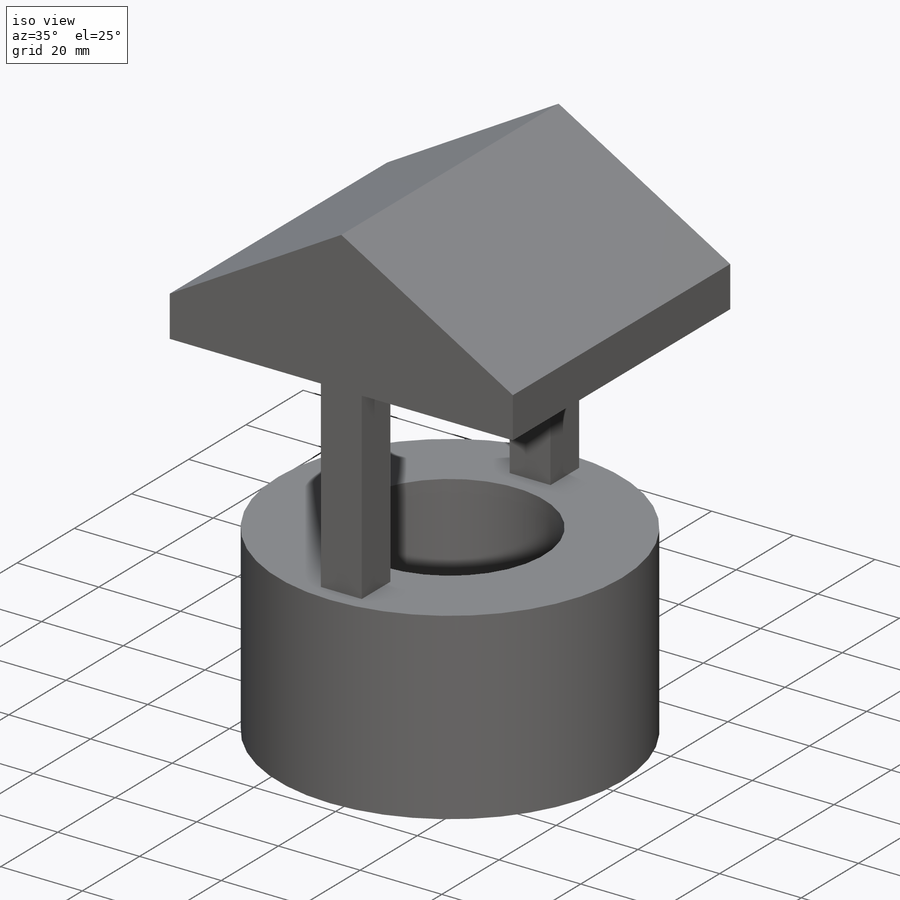
[diagram: iso view]
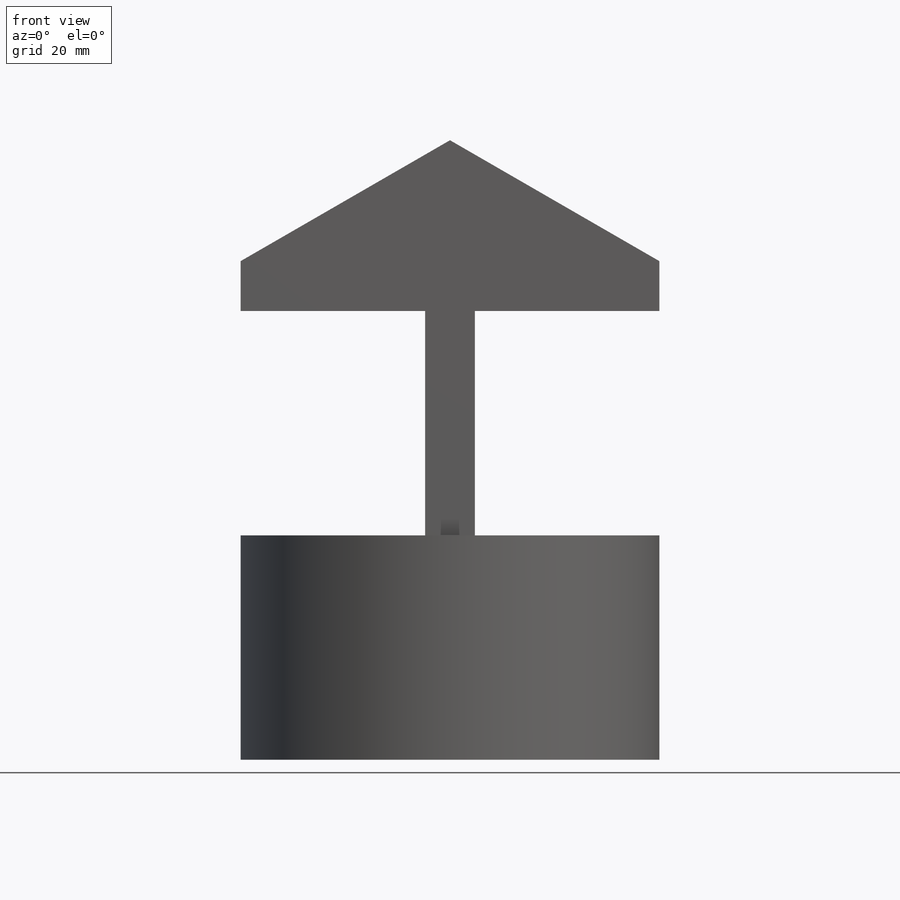
[diagram: front view]
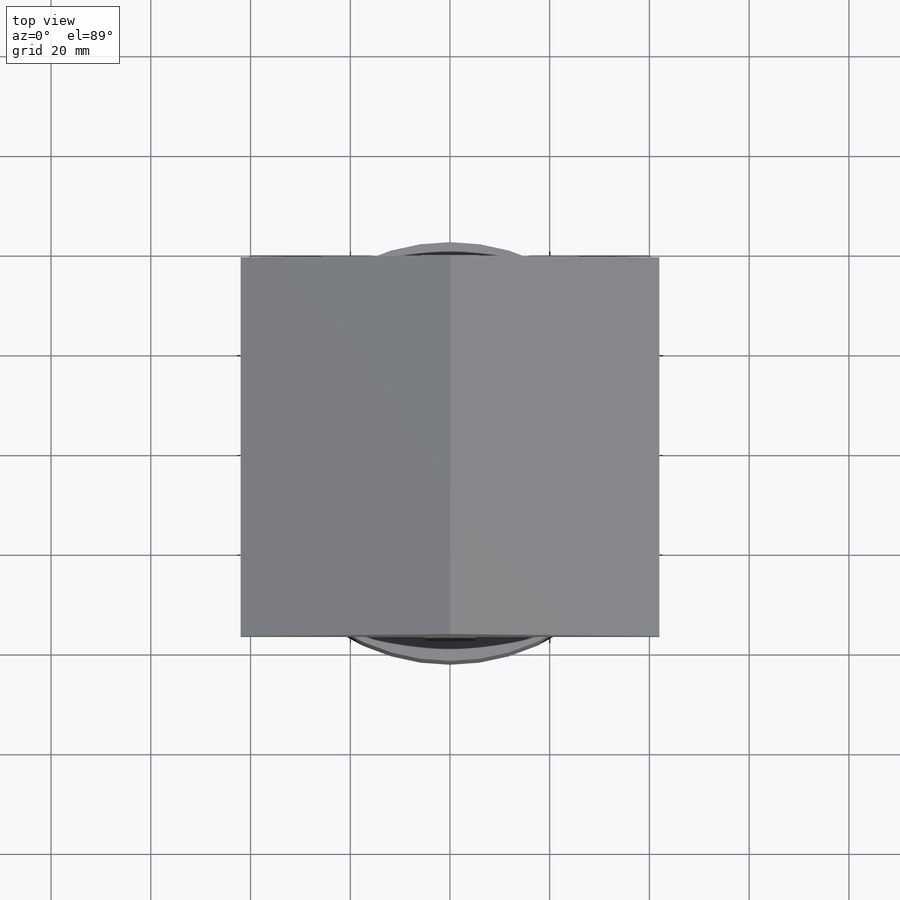
[diagram: top view]
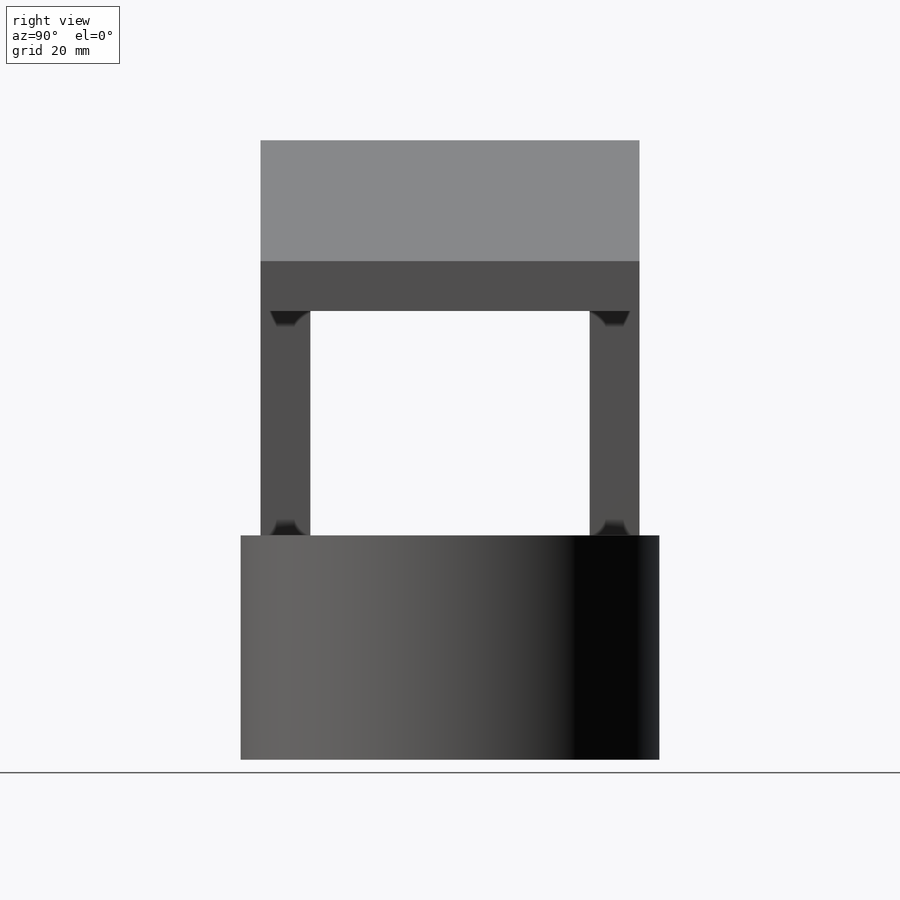
[diagram: right view]
SOLIDWORKS PART (.sldprt)
format: sldprt  version: not decoded by parser v0  size: 165,888 bytes
history: native  units: mm
features: sketch x4, extrude x3, material x1, cut_extrude x1, mirror x1 (+12 scaffold rows collapsed)
feature tree (22):
  scaffold x12  (default folders/planes/origin — collapsed)
  material  "Material <not specified>"
  sketch  "Sketch1"  dims[D1=84.0mm]
  extrude  "Boss-Extrude1"  Depth=45mm
  sketch  "Sketch2"  dims[D1=46.0mm]
  cut_extrude  "Cut-Extrude1"  Depth=25mm
  sketch  "Sketch3"  dims[c1.D1=10.0mm c1.D2=~43.365975mm c2.D2=~12.952765deg c3.D2=84.0mm c3.D3=~44.498224mm c4.D3=30.0deg c4.D4=~45.463408mm c5.D4=30.0deg c5.D5=45.0mm]
  extrude  "Boss-Extrude2"  Depth=38mm
  sketch  "Sketch4"  dims[D1=10.0mm D2=10.0mm D3=37.0mm]
  extrude  "Boss-Extrude4"  [1 undecoded]
  mirror  "Mirror1"
decode coverage: 7 of 9 modeling features carry decoded parameters
note: ~ marks probable driven/reference dimensions
note: 1 parameter value undecoded
note: suppression state not decoded; provenance and decode notes live in map.json
